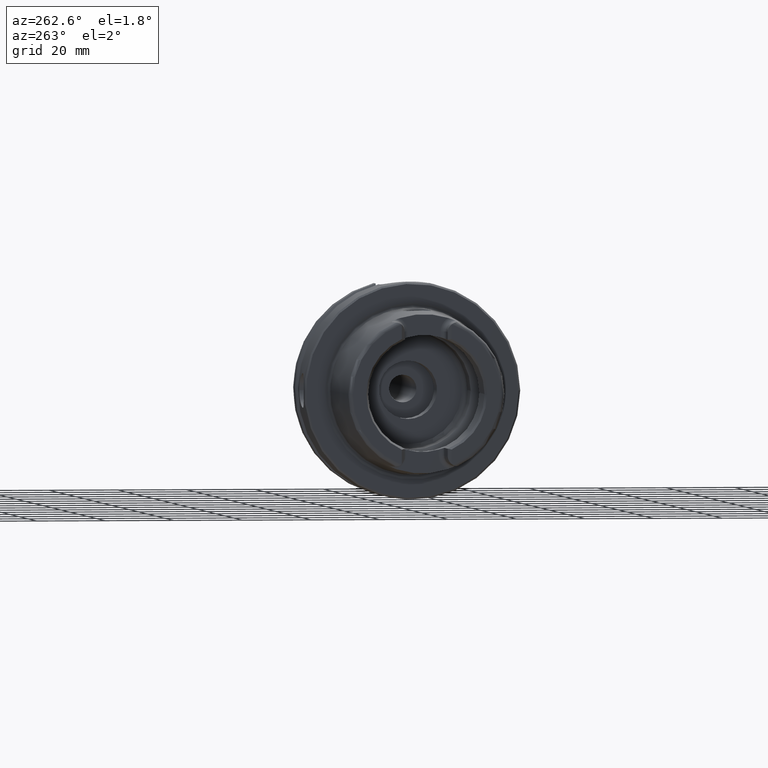
[diagram: clean part render]
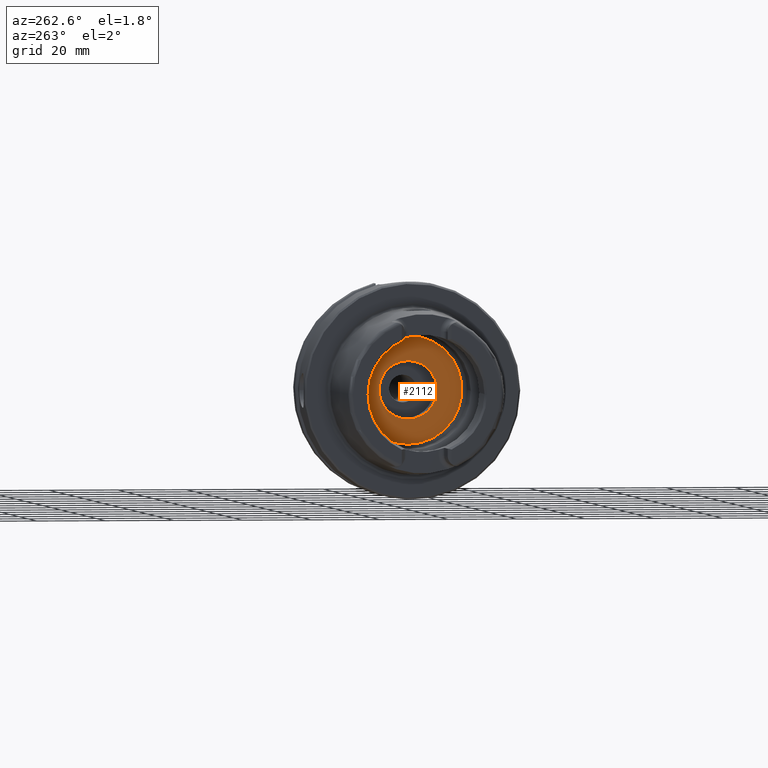
[diagram: same view with one face highlighted and labeled with its STEP entity id]
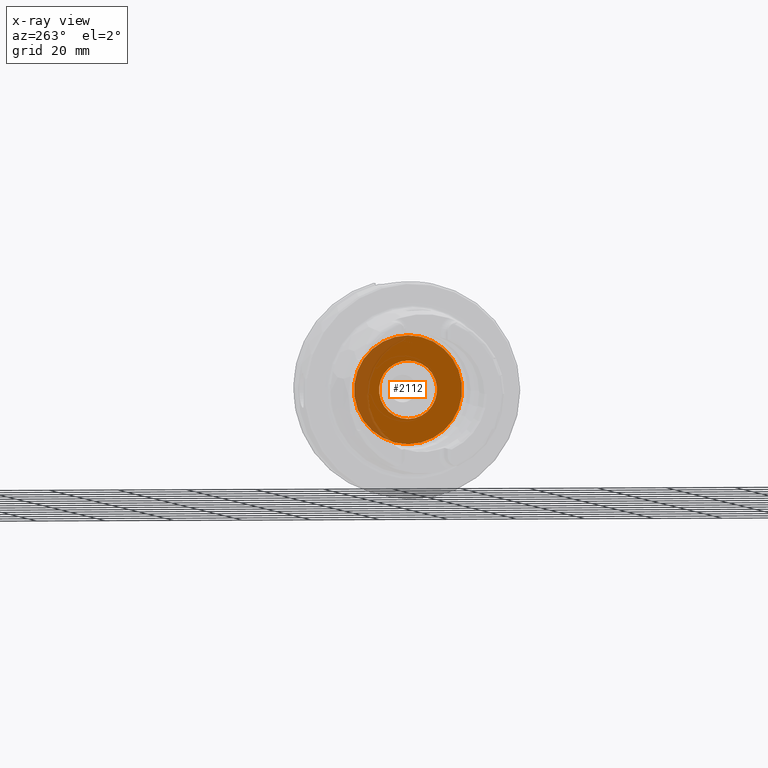
[diagram: x-ray of the same camera — body ghosted, the highlighted face saturated]
A machine part, auxiliary view. The second image highlights one B-rep face of the part: STEP entity #2112.
The next image is the same camera in x-ray: the body ghosted, the highlighted face saturated — about 21% of this face is hidden behind the body in this view.
In plain terms, the highlighted planar face has unit normal (1, 0, 0).
Its self-contained STEP definition (entity closure, byte-faithful):
#100=FACE_BOUND('',#457,.T.);
#142=PLANE('',#2377);
#324=FACE_OUTER_BOUND('',#456,.T.);
#456=EDGE_LOOP('',(#1934));
#457=EDGE_LOOP('',(#1935));
#795=CIRCLE('',#2366,8.458734);
#802=CIRCLE('',#2378,15.75);
#1007=VERTEX_POINT('',#4442);
#1013=VERTEX_POINT('',#4462);
#1315=EDGE_CURVE('',#1007,#1007,#795,.T.);
#1324=EDGE_CURVE('',#1013,#1013,#802,.T.);
#1934=ORIENTED_EDGE('',*,*,#1324,.T.);
#1935=ORIENTED_EDGE('',*,*,#1315,.T.);
#2112=ADVANCED_FACE('',(#324,#100),#142,.F.);
#2366=AXIS2_PLACEMENT_3D('',#4443,#2947,#2948);
#2377=AXIS2_PLACEMENT_3D('',#4461,#2971,#2972);
#2378=AXIS2_PLACEMENT_3D('',#4463,#2973,#2974);
#2947=DIRECTION('center_axis',(1.,0.,0.));
#2948=DIRECTION('ref_axis',(0.,0.,1.));
#2971=DIRECTION('center_axis',(1.,0.,0.));
#2972=DIRECTION('ref_axis',(0.,0.,-1.));
#2973=DIRECTION('center_axis',(-1.,0.,0.));
#2974=DIRECTION('ref_axis',(0.,0.,1.));
#4442=CARTESIAN_POINT('',(10.,-1.03589615179389E-15,-8.458734));
#4443=CARTESIAN_POINT('Origin',(10.,0.,0.));
#4461=CARTESIAN_POINT('Origin',(10.,15.75,0.));
#4462=CARTESIAN_POINT('',(10.,-1.92881870865708E-15,-15.75));
#4463=CARTESIAN_POINT('Origin',(10.,0.,0.));